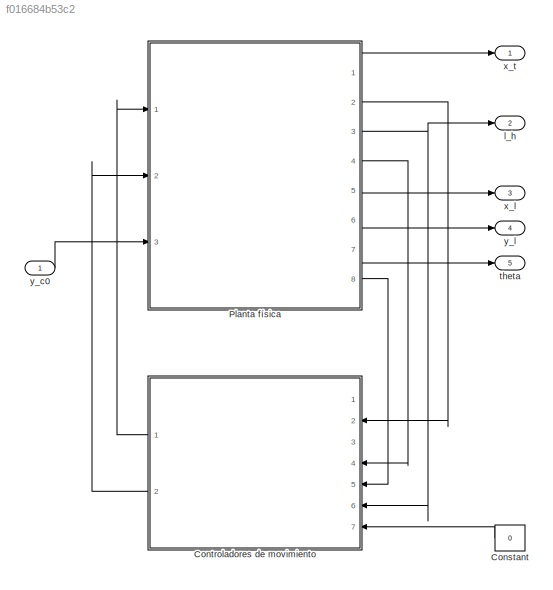
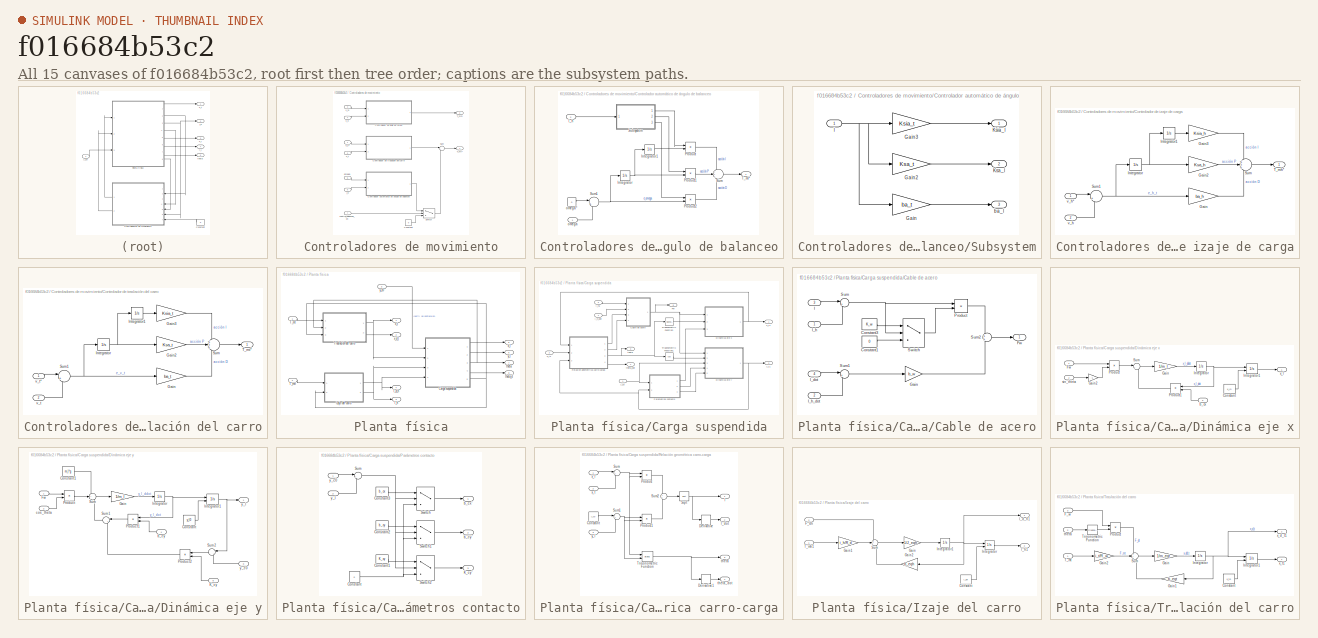
[diagram: thumbnail index - all 15 canvases of the model, root first then tree order]
MODEL slx_f016684b53c2
KIND model
CONFIG AbsTol = auto
CONFIG EnableMultiTasking = off
CONFIG FixedStep = auto
CONFIG MaxStep = auto
CONFIG MinStep = auto
CONFIG RelTol = 1e-3
CONFIG SampleTimeConstraint = Unconstrained
CONFIG Solver = VariableStepAuto
CONFIG SolverName = VariableStepAuto
CONFIG StartTime = 0.0
CONFIG StopTime = 60
BLOCK [Constant] Constant
  OutDataTypeStr = boolean
  Value = 0
BLOCK [SubSystem] Controladores de movimiento
  Ports = [7, 2]
  RequestExecContextInheritance = off
BLOCK [Constant] Controladores de movimiento/Constant
  Value = 0
BLOCK [SubSystem] Controladores de movimiento/Controlador automático de ángulo de balanceo
  Ports = [2, 1]
  RequestExecContextInheritance = off
BLOCK [Integrator] Controladores de movimiento/Controlador automático de ángulo de balanceo/Integrator
  Ports = [1, 1]
BLOCK [Integrator] Controladores de movimiento/Controlador automático de ángulo de balanceo/Integrator1
  Ports = [1, 1]
BLOCK [Product] Controladores de movimiento/Controlador automático de ángulo de balanceo/Product
  InputSameDT = off
  OutDataTypeStr = Inherit: Inherit via internal rule
  Ports = [2, 1]
  RndMeth = Floor
  SaturateOnIntegerOverflow = off
BLOCK [Product] Controladores de movimiento/Controlador automático de ángulo de balanceo/Product1
  InputSameDT = off
  OutDataTypeStr = Inherit: Inherit via internal rule
  Ports = [2, 1]
  RndMeth = Floor
  SaturateOnIntegerOverflow = off
BLOCK [Product] Controladores de movimiento/Controlador automático de ángulo de balanceo/Product2
  InputSameDT = off
  OutDataTypeStr = Inherit: Inherit via internal rule
  Ports = [2, 1]
  RndMeth = Floor
  SaturateOnIntegerOverflow = off
BLOCK [SubSystem] Controladores de movimiento/Controlador automático de ángulo de balanceo/Subsystem
  Ports = [1, 3]
  RequestExecContextInheritance = off
BLOCK [Gain] Controladores de movimiento/Controlador automático de ángulo de balanceo/Subsystem/Gain
  Gain = ba_t
  OutDataTypeStr = Inherit: Inherit via internal rule
  ParamDataTypeStr = Inherit: Inherit via internal rule
  SaturateOnIntegerOverflow = off
BLOCK [Gain] Controladores de movimiento/Controlador automático de ángulo de balanceo/Subsystem/Gain2
  Gain = Ksa_t
  OutDataTypeStr = Inherit: Inherit via internal rule
  ParamDataTypeStr = Inherit: Inherit via internal rule
  SaturateOnIntegerOverflow = off
BLOCK [Gain] Controladores de movimiento/Controlador automático de ángulo de balanceo/Subsystem/Gain3
  Gain = Ksia_t
  OutDataTypeStr = Inherit: Inherit via internal rule
  ParamDataTypeStr = Inherit: Inherit via internal rule
  SaturateOnIntegerOverflow = off
BLOCK [Outport] Controladores de movimiento/Controlador automático de ángulo de balanceo/Subsystem/Ksa_l
  IconDisplay = Port number
  Port = 2
BLOCK [Outport] Controladores de movimiento/Controlador automático de ángulo de balanceo/Subsystem/Ksia_l
  IconDisplay = Port number
BLOCK [Outport] Controladores de movimiento/Controlador automático de ángulo de balanceo/Subsystem/ba_l
  IconDisplay = Port number
  Port = 3
BLOCK [Inport] Controladores de movimiento/Controlador automático de ángulo de balanceo/Subsystem/l
  IconDisplay = Port number
BLOCK [Sum] Controladores de movimiento/Controlador automático de ángulo de balanceo/Sum
  IconShape = round
  InputSameDT = off
  Inputs = +++
  OutDataTypeStr = Inherit: Inherit via internal rule
  Ports = [3, 1]
  SaturateOnIntegerOverflow = off
BLOCK [Sum] Controladores de movimiento/Controlador automático de ángulo de balanceo/Sum1
  IconShape = round
  InputSameDT = off
  Inputs = |+-
  OutDataTypeStr = Inherit: Inherit via internal rule
  Ports = [2, 1]
  SaturateOnIntegerOverflow = off
BLOCK [Outport] Controladores de movimiento/Controlador automático de ángulo de balanceo/T_ml*
  IconDisplay = Port number
BLOCK [Inport] Controladores de movimiento/Controlador automático de ángulo de balanceo/l_h
  IconDisplay = Port number
  Port = 2
BLOCK [Inport] Controladores de movimiento/Controlador automático de ángulo de balanceo/omega
  IconDisplay = Port number
BLOCK [Constant] Controladores de movimiento/Controlador automático de ángulo de balanceo/omega*
  Value = 0
BLOCK [SubSystem] Controladores de movimiento/Controlador de izaje de carga
  Ports = [2, 1]
  RequestExecContextInheritance = off
BLOCK [Gain] Controladores de movimiento/Controlador de izaje de carga/Gain
  Gain = ba_h
  OutDataTypeStr = Inherit: Inherit via internal rule
  ParamDataTypeStr = Inherit: Inherit via internal rule
  SaturateOnIntegerOverflow = off
BLOCK [Gain] Controladores de movimiento/Controlador de izaje de carga/Gain2
  Gain = Ksa_h
  OutDataTypeStr = Inherit: Inherit via internal rule
  ParamDataTypeStr = Inherit: Inherit via internal rule
  SaturateOnIntegerOverflow = off
BLOCK [Gain] Controladores de movimiento/Controlador de izaje de carga/Gain3
  Gain = Ksia_h
  OutDataTypeStr = Inherit: Inherit via internal rule
  ParamDataTypeStr = Inherit: Inherit via internal rule
  SaturateOnIntegerOverflow = off
BLOCK [Integrator] Controladores de movimiento/Controlador de izaje de carga/Integrator
  Ports = [1, 1]
BLOCK [Integrator] Controladores de movimiento/Controlador de izaje de carga/Integrator1
  Ports = [1, 1]
BLOCK [Sum] Controladores de movimiento/Controlador de izaje de carga/Sum
  IconShape = round
  InputSameDT = off
  Inputs = +++
  OutDataTypeStr = Inherit: Inherit via internal rule
  Ports = [3, 1]
  SaturateOnIntegerOverflow = off
BLOCK [Sum] Controladores de movimiento/Controlador de izaje de carga/Sum1
  IconShape = round
  InputSameDT = off
  Inputs = |+-
  OutDataTypeStr = Inherit: Inherit via internal rule
  Ports = [2, 1]
  SaturateOnIntegerOverflow = off
BLOCK [Outport] Controladores de movimiento/Controlador de izaje de carga/T_mh*
  IconDisplay = Port number
BLOCK [Inport] Controladores de movimiento/Controlador de izaje de carga/v_h
  IconDisplay = Port number
  Port = 2
BLOCK [Inport] Controladores de movimiento/Controlador de izaje de carga/v_h*
  IconDisplay = Port number
BLOCK [SubSystem] Controladores de movimiento/Controlador de traslación del carro
  Ports = [2, 1]
  RequestExecContextInheritance = off
BLOCK [Gain] Controladores de movimiento/Controlador de traslación del carro/Gain
  Gain = ba_t
  OutDataTypeStr = Inherit: Inherit via internal rule
  ParamDataTypeStr = Inherit: Inherit via internal rule
  SaturateOnIntegerOverflow = off
BLOCK [Gain] Controladores de movimiento/Controlador de traslación del carro/Gain2
  Gain = Ksa_t
  OutDataTypeStr = Inherit: Inherit via internal rule
  ParamDataTypeStr = Inherit: Inherit via internal rule
  SaturateOnIntegerOverflow = off
BLOCK [Gain] Controladores de movimiento/Controlador de traslación del carro/Gain3
  Gain = Ksia_t
  OutDataTypeStr = Inherit: Inherit via internal rule
  ParamDataTypeStr = Inherit: Inherit via internal rule
  SaturateOnIntegerOverflow = off
BLOCK [Integrator] Controladores de movimiento/Controlador de traslación del carro/Integrator
  Ports = [1, 1]
BLOCK [Integrator] Controladores de movimiento/Controlador de traslación del carro/Integrator1
  Ports = [1, 1]
BLOCK [Sum] Controladores de movimiento/Controlador de traslación del carro/Sum
  IconShape = round
  InputSameDT = off
  Inputs = +++
  OutDataTypeStr = Inherit: Inherit via internal rule
  Ports = [3, 1]
  SaturateOnIntegerOverflow = off
BLOCK [Sum] Controladores de movimiento/Controlador de traslación del carro/Sum1
  IconShape = round
  InputSameDT = off
  Inputs = |+-
  OutDataTypeStr = Inherit: Inherit via internal rule
  Ports = [2, 1]
  SaturateOnIntegerOverflow = off
BLOCK [Outport] Controladores de movimiento/Controlador de traslación del carro/T_mt*
  IconDisplay = Port number
BLOCK [Inport] Controladores de movimiento/Controlador de traslación del carro/v_t
  IconDisplay = Port number
  Port = 2
BLOCK [Inport] Controladores de movimiento/Controlador de traslación del carro/v_t*
  IconDisplay = Port number
BLOCK [Sum] Controladores de movimiento/Sum
  IconShape = round
  InputSameDT = off
  Inputs = |++
  OutDataTypeStr = Inherit: Inherit via internal rule
  Ports = [2, 1]
  SaturateOnIntegerOverflow = off
BLOCK [Switch] Controladores de movimiento/Switch
  InputSameDT = off
  SaturateOnIntegerOverflow = off
BLOCK [Outport] Controladores de movimiento/T_mh*
  IconDisplay = Port number
  Port = 2
BLOCK [Outport] Controladores de movimiento/T_mt*
  IconDisplay = Port number
BLOCK [Inport] Controladores de movimiento/control_balanceo_on
  IconDisplay = Port number
  LockScale = on
  OutDataTypeStr = boolean
  Port = 7
BLOCK [Inport] Controladores de movimiento/l_h
  IconDisplay = Port number
  Port = 6
BLOCK [Inport] Controladores de movimiento/omega
  IconDisplay = Port number
  Port = 5
BLOCK [Inport] Controladores de movimiento/v_h
  IconDisplay = Port number
  Port = 4
BLOCK [Inport] Controladores de movimiento/v_h*
  IconDisplay = Port number
  Port = 3
BLOCK [Inport] Controladores de movimiento/v_t
  IconDisplay = Port number
  Port = 2
BLOCK [Inport] Controladores de movimiento/v_t*
  IconDisplay = Port number
BLOCK [SubSystem] Planta física
  Ports = [3, 8]
  RequestExecContextInheritance = off
BLOCK [SubSystem] Planta física/Carga suspendida
  Ports = [4, 5]
  RequestExecContextInheritance = off
BLOCK [SubSystem] Planta física/Carga suspendida/Cable de acero
  Ports = [4, 1]
  RequestExecContextInheritance = off
BLOCK [Constant] Planta física/Carga suspendida/Cable de acero/Constant1
  Value = 0
BLOCK [Constant] Planta física/Carga suspendida/Cable de acero/Constant3
  Value = K_w
BLOCK [Outport] Planta física/Carga suspendida/Cable de acero/Fw
  IconDisplay = Port number
BLOCK [Gain] Planta física/Carga suspendida/Cable de acero/Gain
  Gain = b_w
  OutDataTypeStr = Inherit: Inherit via internal rule
  ParamDataTypeStr = Inherit: Inherit via internal rule
  SaturateOnIntegerOverflow = off
BLOCK [Product] Planta física/Carga suspendida/Cable de acero/Product
  InputSameDT = off
  OutDataTypeStr = Inherit: Inherit via internal rule
  Ports = [2, 1]
  RndMeth = Floor
  SaturateOnIntegerOverflow = off
BLOCK [Sum] Planta física/Carga suspendida/Cable de acero/Sum
  IconShape = round
  InputSameDT = off
  Inputs = |+-
  OutDataTypeStr = Inherit: Inherit via internal rule
  Ports = [2, 1]
  SaturateOnIntegerOverflow = off
BLOCK [Sum] Planta física/Carga suspendida/Cable de acero/Sum1
  IconShape = round
  InputSameDT = off
  Inputs = |+-
  OutDataTypeStr = Inherit: Inherit via internal rule
  Ports = [2, 1]
  SaturateOnIntegerOverflow = off
BLOCK [Sum] Planta física/Carga suspendida/Cable de acero/Sum2
  IconShape = round
  InputSameDT = off
  Inputs = +|+
  OutDataTypeStr = Inherit: Inherit via internal rule
  Ports = [2, 1]
  SaturateOnIntegerOverflow = off
BLOCK [Switch] Planta física/Carga suspendida/Cable de acero/Switch
  InputSameDT = off
  SaturateOnIntegerOverflow = off
BLOCK [Inport] Planta física/Carga suspendida/Cable de acero/l
  IconDisplay = Port number
  OutDataTypeStr = double
  Port = 3
  PortDimensions = 1
  SampleTime = 0
  SamplingMode = Sample based
  SignalType = real
BLOCK [Inport] Planta física/Carga suspendida/Cable de acero/l_dot
  IconDisplay = Port number
  OutDataTypeStr = double
  Port = 4
  PortDimensions = 1
  SampleTime = 0
  SamplingMode = Sample based
  SignalType = real
BLOCK [Inport] Planta física/Carga suspendida/Cable de acero/l_h
  IconDisplay = Port number
  OutDataTypeStr = double
  PortDimensions = 1
  SampleTime = 0
  SamplingMode = Sample based
  SignalType = real
BLOCK [Inport] Planta física/Carga suspendida/Cable de acero/l_h_dot
  IconDisplay = Port number
  OutDataTypeStr = double
  Port = 2
  PortDimensions = 1
  SampleTime = 0
  SamplingMode = Sample based
  SignalType = real
BLOCK [SubSystem] Planta física/Carga suspendida/Dinámica eje x
  Ports = [3, 1]
  RequestExecContextInheritance = off
BLOCK [Constant] Planta física/Carga suspendida/Dinámica eje x/Constant
  Value = x_l0
BLOCK [Inport] Planta física/Carga suspendida/Dinámica eje x/Fw
  IconDisplay = Port number
  OutDataTypeStr = double
  PortDimensions = 1
  SampleTime = 0
  SamplingMode = Sample based
  SignalType = real
BLOCK [Gain] Planta física/Carga suspendida/Dinámica eje x/Gain
  Gain = 1/m_l
  OutDataTypeStr = Inherit: Inherit via internal rule
  ParamDataTypeStr = Inherit: Inherit via internal rule
  SaturateOnIntegerOverflow = off
BLOCK [Gain] Planta física/Carga suspendida/Dinámica eje x/Gain2
  Gain = -1
  OutDataTypeStr = Inherit: Inherit via internal rule
  ParamDataTypeStr = Inherit: Inherit via internal rule
  SaturateOnIntegerOverflow = off
BLOCK [Integrator] Planta física/Carga suspendida/Dinámica eje x/Integrator
  Ports = [1, 1]
BLOCK [Integrator] Planta física/Carga suspendida/Dinámica eje x/Integrator1
  InitialConditionSource = external
  Ports = [2, 1]
BLOCK [Product] Planta física/Carga suspendida/Dinámica eje x/Product
  InputSameDT = off
  OutDataTypeStr = Inherit: Inherit via internal rule
  Ports = [2, 1]
  RndMeth = Floor
  SaturateOnIntegerOverflow = off
BLOCK [Product] Planta física/Carga suspendida/Dinámica eje x/Product1
  InputSameDT = off
  OutDataTypeStr = Inherit: Inherit via internal rule
  Ports = [2, 1]
  RndMeth = Floor
  SaturateOnIntegerOverflow = off
BLOCK [Sum] Planta física/Carga suspendida/Dinámica eje x/Sum
  IconShape = round
  InputSameDT = off
  Inputs = |+-
  OutDataTypeStr = Inherit: Inherit via internal rule
  Ports = [2, 1]
  SaturateOnIntegerOverflow = off
BLOCK [Inport] Planta física/Carga suspendida/Dinámica eje x/b_cx
  IconDisplay = Port number
  OutDataTypeStr = double
  Port = 3
  PortDimensions = 1
  SampleTime = 0
  SamplingMode = Sample based
  SignalType = real
BLOCK [Inport] Planta física/Carga suspendida/Dinámica eje x/sin_theta
  IconDisplay = Port number
  OutDataTypeStr = double
  Port = 2
  PortDimensions = 1
  SampleTime = 0
  SamplingMode = Sample based
  SignalType = real
BLOCK [Outport] Planta física/Carga suspendida/Dinámica eje x/x_l
  IconDisplay = Port number
  OutDataTypeStr = double
  PortDimensions = 1
  SampleTime = 0
  SamplingMode = Sample based
  SignalType = real
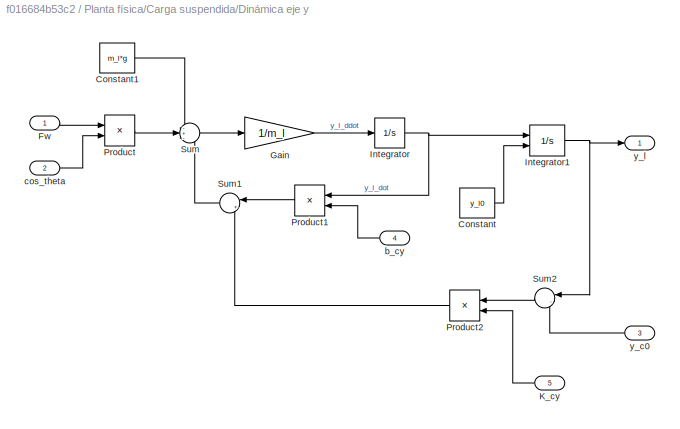
BLOCK [SubSystem] Planta física/Carga suspendida/Dinámica eje y
  Ports = [5, 1]
  RequestExecContextInheritance = off
BLOCK [Constant] Planta física/Carga suspendida/Dinámica eje y/Constant
  Value = y_l0
BLOCK [Constant] Planta física/Carga suspendida/Dinámica eje y/Constant1
  Value = m_l*g
BLOCK [Inport] Planta física/Carga suspendida/Dinámica eje y/Fw
  IconDisplay = Port number
  OutDataTypeStr = double
  PortDimensions = 1
  SampleTime = 0
  SamplingMode = Sample based
  SignalType = real
BLOCK [Gain] Planta física/Carga suspendida/Dinámica eje y/Gain
  Gain = 1/m_l
  OutDataTypeStr = Inherit: Inherit via internal rule
  ParamDataTypeStr = Inherit: Inherit via internal rule
  SaturateOnIntegerOverflow = off
BLOCK [Integrator] Planta física/Carga suspendida/Dinámica eje y/Integrator
  Ports = [1, 1]
BLOCK [Integrator] Planta física/Carga suspendida/Dinámica eje y/Integrator1
  InitialConditionSource = external
  Ports = [2, 1]
BLOCK [Inport] Planta física/Carga suspendida/Dinámica eje y/K_cy
  IconDisplay = Port number
  OutDataTypeStr = double
  Port = 5
  PortDimensions = 1
  SampleTime = 0
  SamplingMode = Sample based
  SignalType = real
BLOCK [Product] Planta física/Carga suspendida/Dinámica eje y/Product
  InputSameDT = off
  OutDataTypeStr = Inherit: Inherit via internal rule
  Ports = [2, 1]
  RndMeth = Floor
  SaturateOnIntegerOverflow = off
BLOCK [Product] Planta física/Carga suspendida/Dinámica eje y/Product1
  InputSameDT = off
  OutDataTypeStr = Inherit: Inherit via internal rule
  Ports = [2, 1]
  RndMeth = Floor
  SaturateOnIntegerOverflow = off
BLOCK [Product] Planta física/Carga suspendida/Dinámica eje y/Product2
  InputSameDT = off
  OutDataTypeStr = Inherit: Inherit via internal rule
  Ports = [2, 1]
  RndMeth = Floor
  SaturateOnIntegerOverflow = off
BLOCK [Sum] Planta física/Carga suspendida/Dinámica eje y/Sum
  IconShape = round
  InputSameDT = off
  Inputs = -+-
  OutDataTypeStr = Inherit: Inherit via internal rule
  Ports = [3, 1]
  SaturateOnIntegerOverflow = off
BLOCK [Sum] Planta física/Carga suspendida/Dinámica eje y/Sum1
  IconShape = round
  InputSameDT = off
  Inputs = |+-
  OutDataTypeStr = Inherit: Inherit via internal rule
  Ports = [2, 1]
  SaturateOnIntegerOverflow = off
BLOCK [Sum] Planta física/Carga suspendida/Dinámica eje y/Sum2
  IconShape = round
  InputSameDT = off
  Inputs = |-+
  OutDataTypeStr = Inherit: Inherit via internal rule
  Ports = [2, 1]
  SaturateOnIntegerOverflow = off
BLOCK [Inport] Planta física/Carga suspendida/Dinámica eje y/b_cy
  IconDisplay = Port number
  OutDataTypeStr = double
  Port = 4
  PortDimensions = 1
  SampleTime = 0
  SamplingMode = Sample based
  SignalType = real
BLOCK [Inport] Planta física/Carga suspendida/Dinámica eje y/cos_theta
  IconDisplay = Port number
  OutDataTypeStr = double
  Port = 2
  PortDimensions = 1
  SampleTime = 0
  SamplingMode = Sample based
  SignalType = real
BLOCK [Inport] Planta física/Carga suspendida/Dinámica eje y/y_c0
  IconDisplay = Port number
  OutDataTypeStr = double
  Port = 3
  PortDimensions = 1
  SampleTime = 0
  SamplingMode = Sample based
  SignalType = real
BLOCK [Outport] Planta física/Carga suspendida/Dinámica eje y/y_l
  IconDisplay = Port number
  OutDataTypeStr = double
  PortDimensions = 1
  SampleTime = 0
  SamplingMode = Sample based
  SignalType = real
BLOCK [Outport] Planta física/Carga suspendida/Fw
  IconDisplay = Port number
  OutDataTypeStr = double
  Port = 5
  PortDimensions = 1
  SampleTime = 0
  SamplingMode = Sample based
  SignalType = real
BLOCK [SubSystem] Planta física/Carga suspendida/Parámetros contacto
  Ports = [2, 3]
  RequestExecContextInheritance = off
BLOCK [Constant] Planta física/Carga suspendida/Parámetros contacto/Constant
  Value = 0
BLOCK [Constant] Planta física/Carga suspendida/Parámetros contacto/Constant1
  Value = K_cy
BLOCK [Constant] Planta física/Carga suspendida/Parámetros contacto/Constant2
  Value = b_cy
BLOCK [Constant] Planta física/Carga suspendida/Parámetros contacto/Constant3
  Value = b_cx
BLOCK [Outport] Planta física/Carga suspendida/Parámetros contacto/K_cy'
  IconDisplay = Port number
  OutDataTypeStr = double
  Port = 3
  PortDimensions = 1
  SampleTime = 0
  SamplingMode = Sample based
  SignalType = real
BLOCK [Sum] Planta física/Carga suspendida/Parámetros contacto/Sum
  IconShape = round
  InputSameDT = off
  Inputs = |+-
  OutDataTypeStr = Inherit: Inherit via internal rule
  Ports = [2, 1]
  SaturateOnIntegerOverflow = off
BLOCK [Switch] Planta física/Carga suspendida/Parámetros contacto/Switch
  InputSameDT = off
  SaturateOnIntegerOverflow = off
BLOCK [Switch] Planta física/Carga suspendida/Parámetros contacto/Switch1
  InputSameDT = off
  SaturateOnIntegerOverflow = off
BLOCK [Switch] Planta física/Carga suspendida/Parámetros contacto/Switch2
  InputSameDT = off
  SaturateOnIntegerOverflow = off
BLOCK [Outport] Planta física/Carga suspendida/Parámetros contacto/b_cx'
  IconDisplay = Port number
  OutDataTypeStr = double
  PortDimensions = 1
  SampleTime = 0
  SamplingMode = Sample based
  SignalType = real
BLOCK [Outport] Planta física/Carga suspendida/Parámetros contacto/b_cy'
  IconDisplay = Port number
  OutDataTypeStr = double
  Port = 2
  PortDimensions = 1
  SampleTime = 0
  SamplingMode = Sample based
  SignalType = real
BLOCK [Inport] Planta física/Carga suspendida/Parámetros contacto/y_c0
  IconDisplay = Port number
  OutDataTypeStr = double
  PortDimensions = 1
  SampleTime = 0
  SamplingMode = Sample based
  SignalType = real
BLOCK [Inport] Planta física/Carga suspendida/Parámetros contacto/y_l
  IconDisplay = Port number
  OutDataTypeStr = double
  Port = 2
  PortDimensions = 1
  SampleTime = 0
  SamplingMode = Sample based
  SignalType = real
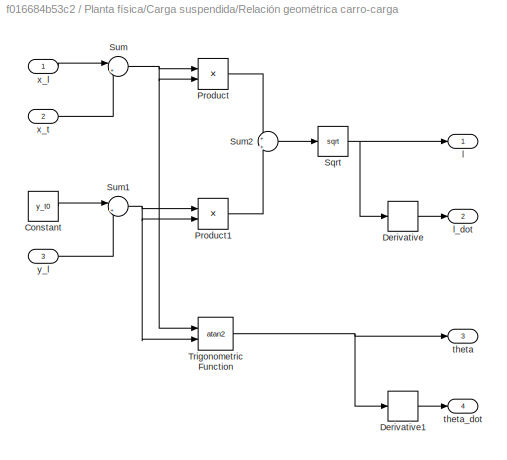
BLOCK [SubSystem] Planta física/Carga suspendida/Relación geométrica carro-carga
  Ports = [3, 4]
  RequestExecContextInheritance = off
BLOCK [Constant] Planta física/Carga suspendida/Relación geométrica carro-carga/Constant
  Value = y_t0
BLOCK [Derivative] Planta física/Carga suspendida/Relación geométrica carro-carga/Derivative
BLOCK [Derivative] Planta física/Carga suspendida/Relación geométrica carro-carga/Derivative1
BLOCK [Product] Planta física/Carga suspendida/Relación geométrica carro-carga/Product
  InputSameDT = off
  OutDataTypeStr = Inherit: Inherit via internal rule
  Ports = [2, 1]
  RndMeth = Floor
  SaturateOnIntegerOverflow = off
BLOCK [Product] Planta física/Carga suspendida/Relación geométrica carro-carga/Product1
  InputSameDT = off
  OutDataTypeStr = Inherit: Inherit via internal rule
  Ports = [2, 1]
  RndMeth = Floor
  SaturateOnIntegerOverflow = off
BLOCK [Sqrt] Planta física/Carga suspendida/Relación geométrica carro-carga/Sqrt
BLOCK [Sum] Planta física/Carga suspendida/Relación geométrica carro-carga/Sum
  IconShape = round
  InputSameDT = off
  Inputs = |+-
  OutDataTypeStr = Inherit: Inherit via internal rule
  Ports = [2, 1]
  SaturateOnIntegerOverflow = off
BLOCK [Sum] Planta física/Carga suspendida/Relación geométrica carro-carga/Sum1
  IconShape = round
  InputSameDT = off
  Inputs = |+-
  OutDataTypeStr = Inherit: Inherit via internal rule
  Ports = [2, 1]
  SaturateOnIntegerOverflow = off
BLOCK [Sum] Planta física/Carga suspendida/Relación geométrica carro-carga/Sum2
  IconShape = round
  InputSameDT = off
  Inputs = +|+
  OutDataTypeStr = Inherit: Inherit via internal rule
  Ports = [2, 1]
  SaturateOnIntegerOverflow = off
BLOCK [Trigonometry] Planta física/Carga suspendida/Relación geométrica carro-carga/Trigonometric Function
  Operator = atan2
  Ports = [2, 1]
BLOCK [Outport] Planta física/Carga suspendida/Relación geométrica carro-carga/l
  IconDisplay = Port number
BLOCK [Outport] Planta física/Carga suspendida/Relación geométrica carro-carga/l_dot
  IconDisplay = Port number
  Port = 2
BLOCK [Outport] Planta física/Carga suspendida/Relación geométrica carro-carga/theta
  IconDisplay = Port number
  Port = 3
BLOCK [Outport] Planta física/Carga suspendida/Relación geométrica carro-carga/theta_dot
  IconDisplay = Port number
  Port = 4
BLOCK [Inport] Planta física/Carga suspendida/Relación geométrica carro-carga/x_l
  IconDisplay = Port number
BLOCK [Inport] Planta física/Carga suspendida/Relación geométrica carro-carga/x_t
  IconDisplay = Port number
  Port = 2
BLOCK [Inport] Planta física/Carga suspendida/Relación geométrica carro-carga/y_l
  IconDisplay = Port number
  Port = 3
BLOCK [Trigonometry] Planta física/Carga suspendida/Trigonometric Function
  Ports = [1, 1]
BLOCK [Trigonometry] Planta física/Carga suspendida/Trigonometric Function1
  Operator = cos
  Ports = [1, 1]
BLOCK [Inport] Planta física/Carga suspendida/l_h1
  IconDisplay = Port number
  OutDataTypeStr = double
  Port = 3
  PortDimensions = 1
  SampleTime = 0
  SamplingMode = Sample based
  SignalType = real
BLOCK [Inport] Planta física/Carga suspendida/l_h_dot
  IconDisplay = Port number
  OutDataTypeStr = double
  Port = 4
  PortDimensions = 1
  SampleTime = 0
  SamplingMode = Sample based
  SignalType = real
BLOCK [Outport] Planta física/Carga suspendida/theta
  IconDisplay = Port number
  OutDataTypeStr = double
  Port = 3
  PortDimensions = 1
  SampleTime = 0
  SamplingMode = Sample based
  SignalType = real
BLOCK [Outport] Planta física/Carga suspendida/theta_dot
  IconDisplay = Port number
  OutDataTypeStr = double
  Port = 4
  PortDimensions = 1
  SampleTime = 0
  SamplingMode = Sample based
  SignalType = real
BLOCK [Outport] Planta física/Carga suspendida/x_l1
  IconDisplay = Port number
  OutDataTypeStr = double
  PortDimensions = 1
  SampleTime = 0
  SamplingMode = Sample based
  SignalType = real
BLOCK [Inport] Planta física/Carga suspendida/x_t1
  IconDisplay = Port number
  OutDataTypeStr = double
  Port = 2
  PortDimensions = 1
  SampleTime = 0
  SamplingMode = Sample based
  SignalType = real
BLOCK [Inport] Planta física/Carga suspendida/y_c0
  IconDisplay = Port number
  OutDataTypeStr = double
  PortDimensions = 1
  SampleTime = 0
  SamplingMode = Sample based
  SignalType = real
BLOCK [Outport] Planta física/Carga suspendida/y_l1
  IconDisplay = Port number
  OutDataTypeStr = double
  Port = 2
  PortDimensions = 1
  SampleTime = 0
  SamplingMode = Sample based
  SignalType = real
BLOCK [SubSystem] Planta física/Izaje del carro
  Ports = [2, 2]
  RequestExecContextInheritance = off
BLOCK [Constant] Planta física/Izaje del carro/Constant
  Value = l_0h
BLOCK [Inport] Planta física/Izaje del carro/F_dh
  IconDisplay = Port number
  Port = 2
BLOCK [Gain] Planta física/Izaje del carro/Gain
  Gain = 1/J_eqh
  OutDataTypeStr = Inherit: Inherit via internal rule
  ParamDataTypeStr = Inherit: Inherit via internal rule
  SaturateOnIntegerOverflow = off
BLOCK [Gain] Planta física/Izaje del carro/Gain1
  Gain = i_h/R_d
  OutDataTypeStr = Inherit: Inherit via internal rule
  ParamDataTypeStr = Inherit: Inherit via internal rule
  SaturateOnIntegerOverflow = off
BLOCK [Gain] Planta física/Izaje del carro/Gain2
  Gain = b_eqh
  OutDataTypeStr = Inherit: Inherit via internal rule
  ParamDataTypeStr = Inherit: Inherit via internal rule
  SaturateOnIntegerOverflow = off
BLOCK [Integrator] Planta física/Izaje del carro/Integrator
  InitialConditionSource = external
  Ports = [2, 1]
BLOCK [Integrator] Planta física/Izaje del carro/Integrator1
  Ports = [1, 1]
BLOCK [Sum] Planta física/Izaje del carro/Sum
  IconShape = round
  InputSameDT = off
  Inputs = ++-
  OutDataTypeStr = Inherit: Inherit via internal rule
  Ports = [3, 1]
  SaturateOnIntegerOverflow = off
BLOCK [Inport] Planta física/Izaje del carro/T_mh1
  IconDisplay = Port number
BLOCK [Outport] Planta física/Izaje del carro/l_d_h1
  IconDisplay = Port number
BLOCK [Outport] Planta física/Izaje del carro/l_h1
  IconDisplay = Port number
  Port = 2
BLOCK [Inport] Planta física/T_mh
  IconDisplay = Port number
  Port = 2
BLOCK [Inport] Planta física/T_mt
  IconDisplay = Port number
BLOCK [SubSystem] Planta física/Traslación del carro
  Ports = [3, 2]
  RequestExecContextInheritance = off
BLOCK [Constant] Planta física/Traslación del carro/Constant
  Value = x_t0
BLOCK [Inport] Planta física/Traslación del carro/F_w
  IconDisplay = Port number
  OutDataTypeStr = double
  Port = 3
  PortDimensions = 1
  SampleTime = 0
  SamplingMode = Sample based
  SignalType = real
BLOCK [Gain] Planta física/Traslación del carro/Gain
  Gain = 1/m_eqt
  OutDataTypeStr = Inherit: Inherit via internal rule
  ParamDataTypeStr = Inherit: Inherit via internal rule
  SaturateOnIntegerOverflow = off
BLOCK [Gain] Planta física/Traslación del carro/Gain1
  Gain = b_eqt
  OutDataTypeStr = Inherit: Inherit via internal rule
  ParamDataTypeStr = Inherit: Inherit via internal rule
  SaturateOnIntegerOverflow = off
BLOCK [Gain] Planta física/Traslación del carro/Gain2
  Gain = i_t/R_w
  OutDataTypeStr = Inherit: Inherit via internal rule
  ParamDataTypeStr = Inherit: Inherit via internal rule
  SaturateOnIntegerOverflow = off
BLOCK [Integrator] Planta física/Traslación del carro/Integrator
  Ports = [1, 1]
BLOCK [Integrator] Planta física/Traslación del carro/Integrator1
  InitialConditionSource = external
  Ports = [2, 1]
BLOCK [Product] Planta física/Traslación del carro/Product
  InputSameDT = off
  OutDataTypeStr = Inherit: Inherit via internal rule
  Ports = [2, 1]
  RndMeth = Floor
  SaturateOnIntegerOverflow = off
BLOCK [Sum] Planta física/Traslación del carro/Sum
  IconShape = round
  InputSameDT = off
  Inputs = ++-
  OutDataTypeStr = Inherit: Inherit via internal rule
  Ports = [3, 1]
  SaturateOnIntegerOverflow = off
BLOCK [Inport] Planta física/Traslación del carro/T_mt
  IconDisplay = Port number
  OutDataTypeStr = double
  PortDimensions = 1
  SampleTime = 0
  SamplingMode = Sample based
  SignalType = real
BLOCK [Trigonometry] Planta física/Traslación del carro/Trigonometric Function
  Ports = [1, 1]
BLOCK [Inport] Planta física/Traslación del carro/theta
  IconDisplay = Port number
  OutDataTypeStr = double
  Port = 2
  PortDimensions = 1
  SampleTime = 0
  SamplingMode = Sample based
  SignalType = real
BLOCK [Outport] Planta física/Traslación del carro/x_d_t1
  IconDisplay = Port number
  OutDataTypeStr = double
  Port = 2
  PortDimensions = 1
  SampleTime = 0
  SamplingMode = Sample based
  SignalType = real
BLOCK [Outport] Planta física/Traslación del carro/x_t1
  IconDisplay = Port number
  OutDataTypeStr = double
  PortDimensions = 1
  SampleTime = 0
  SamplingMode = Sample based
  SignalType = real
BLOCK [Outport] Planta física/l_d_h
  IconDisplay = Port number
  Port = 4
BLOCK [Outport] Planta física/l_h
  IconDisplay = Port number
  Port = 3
BLOCK [Outport] Planta física/theta
  IconDisplay = Port number
  Port = 7
BLOCK [Outport] Planta física/theta_d
  IconDisplay = Port number
  Port = 8
BLOCK [Outport] Planta física/x_d_t
  IconDisplay = Port number
  Port = 2
BLOCK [Outport] Planta física/x_l
  IconDisplay = Port number
  Port = 5
BLOCK [Outport] Planta física/x_t
  IconDisplay = Port number
BLOCK [Inport] Planta física/y_c0
  IconDisplay = Port number
  Port = 3
BLOCK [Outport] Planta física/y_l
  IconDisplay = Port number
  Port = 6
BLOCK [Outport] l_h
  IconDisplay = Port number
  Port = 2
BLOCK [Outport] theta
  IconDisplay = Port number
  Port = 5
BLOCK [Outport] x_l
  IconDisplay = Port number
  Port = 3
BLOCK [Outport] x_t
  IconDisplay = Port number
BLOCK [Inport] y_c0
  IconDisplay = Port number
BLOCK [Outport] y_l
  IconDisplay = Port number
  Port = 4
LINE Constant:1 -> Controladores de movimiento:7
LINE Controladores de movimiento/Constant:1 -> Controladores de movimiento/Switch:3
LINE Controladores de movimiento/Controlador automático de ángulo de balanceo/Integrator1:1 -> Controladores de movimiento/Controlador automático de ángulo de balanceo/Product:2
NET Controladores de movimiento/Controlador automático de ángulo de balanceo/Integrator:1 -> Controladores de movimiento/Controlador automático de ángulo de balanceo/Integrator1:1, Controladores de movimiento/Controlador automático de ángulo de balanceo/Product1:2
LINE Controladores de movimiento/Controlador automático de ángulo de balanceo/Product1:1 -> Controladores de movimiento/Controlador automático de ángulo de balanceo/Sum:2
LINE Controladores de movimiento/Controlador automático de ángulo de balanceo/Product2:1 -> Controladores de movimiento/Controlador automático de ángulo de balanceo/Sum:3
LINE Controladores de movimiento/Controlador automático de ángulo de balanceo/Product:1 -> Controladores de movimiento/Controlador automático de ángulo de balanceo/Sum:1
LINE Controladores de movimiento/Controlador automático de ángulo de balanceo/Subsystem/Gain2:1 -> Controladores de movimiento/Controlador automático de ángulo de balanceo/Subsystem/Ksa_l:1
LINE Controladores de movimiento/Controlador automático de ángulo de balanceo/Subsystem/Gain3:1 -> Controladores de movimiento/Controlador automático de ángulo de balanceo/Subsystem/Ksia_l:1
LINE Controladores de movimiento/Controlador automático de ángulo de balanceo/Subsystem/Gain:1 -> Controladores de movimiento/Controlador automático de ángulo de balanceo/Subsystem/ba_l:1
NET Controladores de movimiento/Controlador automático de ángulo de balanceo/Subsystem/l:1 -> Controladores de movimiento/Controlador automático de ángulo de balanceo/Subsystem/Gain2:1, Controladores de movimiento/Controlador automático de ángulo de balanceo/Subsystem/Gain3:1, Controladores de movimiento/Controlador automático de ángulo de balanceo/Subsystem/Gain:1
LINE Controladores de movimiento/Controlador automático de ángulo de balanceo/Subsystem:1 -> Controladores de movimiento/Controlador automático de ángulo de balanceo/Product:1
LINE Controladores de movimiento/Controlador automático de ángulo de balanceo/Subsystem:2 -> Controladores de movimiento/Controlador automático de ángulo de balanceo/Product1:1
LINE Controladores de movimiento/Controlador automático de ángulo de balanceo/Subsystem:3 -> Controladores de movimiento/Controlador automático de ángulo de balanceo/Product2:1
NET Controladores de movimiento/Controlador automático de ángulo de balanceo/Sum1:1 -> Controladores de movimiento/Controlador automático de ángulo de balanceo/Integrator:1, Controladores de movimiento/Controlador automático de ángulo de balanceo/Product2:2
LINE Controladores de movimiento/Controlador automático de ángulo de balanceo/Sum:1 -> Controladores de movimiento/Controlador automático de ángulo de balanceo/T_ml*:1
LINE Controladores de movimiento/Controlador automático de ángulo de balanceo/l_h:1 -> Controladores de movimiento/Controlador automático de ángulo de balanceo/Subsystem:1
LINE Controladores de movimiento/Controlador automático de ángulo de balanceo/omega*:1 -> Controladores de movimiento/Controlador automático de ángulo de balanceo/Sum1:1
LINE Controladores de movimiento/Controlador automático de ángulo de balanceo/omega:1 -> Controladores de movimiento/Controlador automático de ángulo de balanceo/Sum1:2
LINE Controladores de movimiento/Controlador automático de ángulo de balanceo:1 -> Controladores de movimiento/Switch:1
LINE Controladores de movimiento/Controlador de izaje de carga/Gain2:1 -> Controladores de movimiento/Controlador de izaje de carga/Sum:2
LINE Controladores de movimiento/Controlador de izaje de carga/Gain3:1 -> Controladores de movimiento/Controlador de izaje de carga/Sum:1
LINE Controladores de movimiento/Controlador de izaje de carga/Gain:1 -> Controladores de movimiento/Controlador de izaje de carga/Sum:3
LINE Controladores de movimiento/Controlador de izaje de carga/Integrator1:1 -> Controladores de movimiento/Controlador de izaje de carga/Gain3:1
NET Controladores de movimiento/Controlador de izaje de carga/Integrator:1 -> Controladores de movimiento/Controlador de izaje de carga/Gain2:1, Controladores de movimiento/Controlador de izaje de carga/Integrator1:1
NET Controladores de movimiento/Controlador de izaje de carga/Sum1:1 -> Controladores de movimiento/Controlador de izaje de carga/Gain:1, Controladores de movimiento/Controlador de izaje de carga/Integrator:1
LINE Controladores de movimiento/Controlador de izaje de carga/Sum:1 -> Controladores de movimiento/Controlador de izaje de carga/T_mh*:1
LINE Controladores de movimiento/Controlador de izaje de carga/v_h*:1 -> Controladores de movimiento/Controlador de izaje de carga/Sum1:1
LINE Controladores de movimiento/Controlador de izaje de carga/v_h:1 -> Controladores de movimiento/Controlador de izaje de carga/Sum1:2
LINE Controladores de movimiento/Controlador de izaje de carga:1 -> Controladores de movimiento/T_mh*:1
LINE Controladores de movimiento/Controlador de traslación del carro/Gain2:1 -> Controladores de movimiento/Controlador de traslación del carro/Sum:2
LINE Controladores de movimiento/Controlador de traslación del carro/Gain3:1 -> Controladores de movimiento/Controlador de traslación del carro/Sum:1
LINE Controladores de movimiento/Controlador de traslación del carro/Gain:1 -> Controladores de movimiento/Controlador de traslación del carro/Sum:3
LINE Controladores de movimiento/Controlador de traslación del carro/Integrator1:1 -> Controladores de movimiento/Controlador de traslación del carro/Gain3:1
NET Controladores de movimiento/Controlador de traslación del carro/Integrator:1 -> Controladores de movimiento/Controlador de traslación del carro/Gain2:1, Controladores de movimiento/Controlador de traslación del carro/Integrator1:1
NET Controladores de movimiento/Controlador de traslación del carro/Sum1:1 -> Controladores de movimiento/Controlador de traslación del carro/Gain:1, Controladores de movimiento/Controlador de traslación del carro/Integrator:1
LINE Controladores de movimiento/Controlador de traslación del carro/Sum:1 -> Controladores de movimiento/Controlador de traslación del carro/T_mt*:1
LINE Controladores de movimiento/Controlador de traslación del carro/v_t*:1 -> Controladores de movimiento/Controlador de traslación del carro/Sum1:1
LINE Controladores de movimiento/Controlador de traslación del carro/v_t:1 -> Controladores de movimiento/Controlador de traslación del carro/Sum1:2
LINE Controladores de movimiento/Controlador de traslación del carro:1 -> Controladores de movimiento/Sum:1
LINE Controladores de movimiento/Sum:1 -> Controladores de movimiento/T_mt*:1
LINE Controladores de movimiento/Switch:1 -> Controladores de movimiento/Sum:2
LINE Controladores de movimiento/control_balanceo_on:1 -> Controladores de movimiento/Switch:2
LINE Controladores de movimiento/l_h:1 -> Controladores de movimiento/Controlador automático de ángulo de balanceo:2
LINE Controladores de movimiento/omega:1 -> Controladores de movimiento/Controlador automático de ángulo de balanceo:1
LINE Controladores de movimiento/v_h*:1 -> Controladores de movimiento/Controlador de izaje de carga:1
LINE Controladores de movimiento/v_h:1 -> Controladores de movimiento/Controlador de izaje de carga:2
LINE Controladores de movimiento/v_t*:1 -> Controladores de movimiento/Controlador de traslación del carro:1
LINE Controladores de movimiento/v_t:1 -> Controladores de movimiento/Controlador de traslación del carro:2
LINE Controladores de movimiento:1 -> Planta física:1
LINE Controladores de movimiento:2 -> Planta física:2
LINE Planta física/Carga suspendida/Cable de acero/Constant1:1 -> Planta física/Carga suspendida/Cable de acero/Switch:3
LINE Planta física/Carga suspendida/Cable de acero/Constant3:1 -> Planta física/Carga suspendida/Cable de acero/Switch:1
LINE Planta física/Carga suspendida/Cable de acero/Gain:1 -> Planta física/Carga suspendida/Cable de acero/Sum2:2
LINE Planta física/Carga suspendida/Cable de acero/Product:1 -> Planta física/Carga suspendida/Cable de acero/Sum2:1
LINE Planta física/Carga suspendida/Cable de acero/Sum1:1 -> Planta física/Carga suspendida/Cable de acero/Gain:1
LINE Planta física/Carga suspendida/Cable de acero/Sum2:1 -> Planta física/Carga suspendida/Cable de acero/Fw:1
NET Planta física/Carga suspendida/Cable de acero/Sum:1 -> Planta física/Carga suspendida/Cable de acero/Product:1, Planta física/Carga suspendida/Cable de acero/Switch:2
LINE Planta física/Carga suspendida/Cable de acero/Switch:1 -> Planta física/Carga suspendida/Cable de acero/Product:2
LINE Planta física/Carga suspendida/Cable de acero/l:1 -> Planta física/Carga suspendida/Cable de acero/Sum:1
LINE Planta física/Carga suspendida/Cable de acero/l_dot:1 -> Planta física/Carga suspendida/Cable de acero/Sum1:1
LINE Planta física/Carga suspendida/Cable de acero/l_h:1 -> Planta física/Carga suspendida/Cable de acero/Sum:2
LINE Planta física/Carga suspendida/Cable de acero/l_h_dot:1 -> Planta física/Carga suspendida/Cable de acero/Sum1:2
NET Planta física/Carga suspendida/Cable de acero:1 -> Planta física/Carga suspendida/Dinámica eje x:1, Planta física/Carga suspendida/Dinámica eje y:1, Planta física/Carga suspendida/Fw:1
LINE Planta física/Carga suspendida/Dinámica eje x/Constant:1 -> Planta física/Carga suspendida/Dinámica eje x/Integrator1:2
LINE Planta física/Carga suspendida/Dinámica eje x/Fw:1 -> Planta física/Carga suspendida/Dinámica eje x/Product:1
LINE Planta física/Carga suspendida/Dinámica eje x/Gain2:1 -> Planta física/Carga suspendida/Dinámica eje x/Product:2
LINE Planta física/Carga suspendida/Dinámica eje x/Gain:1 -> Planta física/Carga suspendida/Dinámica eje x/Integrator:1
LINE Planta física/Carga suspendida/Dinámica eje x/Integrator1:1 -> Planta física/Carga suspendida/Dinámica eje x/x_l:1
NET Planta física/Carga suspendida/Dinámica eje x/Integrator:1 -> Planta física/Carga suspendida/Dinámica eje x/Integrator1:1, Planta física/Carga suspendida/Dinámica eje x/Product1:1
LINE Planta física/Carga suspendida/Dinámica eje x/Product1:1 -> Planta física/Carga suspendida/Dinámica eje x/Sum:2
LINE Planta física/Carga suspendida/Dinámica eje x/Product:1 -> Planta física/Carga suspendida/Dinámica eje x/Sum:1
LINE Planta física/Carga suspendida/Dinámica eje x/Sum:1 -> Planta física/Carga suspendida/Dinámica eje x/Gain:1
LINE Planta física/Carga suspendida/Dinámica eje x/b_cx:1 -> Planta física/Carga suspendida/Dinámica eje x/Product1:2
LINE Planta física/Carga suspendida/Dinámica eje x/sin_theta:1 -> Planta física/Carga suspendida/Dinámica eje x/Gain2:1
NET Planta física/Carga suspendida/Dinámica eje x:1 -> Planta física/Carga suspendida/Relación geométrica carro-carga:1, Planta física/Carga suspendida/x_l1:1
LINE Planta física/Carga suspendida/Dinámica eje y/Constant1:1 -> Planta física/Carga suspendida/Dinámica eje y/Sum:1
LINE Planta física/Carga suspendida/Dinámica eje y/Constant:1 -> Planta física/Carga suspendida/Dinámica eje y/Integrator1:2
LINE Planta física/Carga suspendida/Dinámica eje y/Fw:1 -> Planta física/Carga suspendida/Dinámica eje y/Product:1
LINE Planta física/Carga suspendida/Dinámica eje y/Gain:1 -> Planta física/Carga suspendida/Dinámica eje y/Integrator:1
NET Planta física/Carga suspendida/Dinámica eje y/Integrator1:1 -> Planta física/Carga suspendida/Dinámica eje y/Sum2:1, Planta física/Carga suspendida/Dinámica eje y/y_l:1
NET Planta física/Carga suspendida/Dinámica eje y/Integrator:1 -> Planta física/Carga suspendida/Dinámica eje y/Integrator1:1, Planta física/Carga suspendida/Dinámica eje y/Product1:1
LINE Planta física/Carga suspendida/Dinámica eje y/K_cy:1 -> Planta física/Carga suspendida/Dinámica eje y/Product2:2
LINE Planta física/Carga suspendida/Dinámica eje y/Product1:1 -> Planta física/Carga suspendida/Dinámica eje y/Sum1:1
LINE Planta física/Carga suspendida/Dinámica eje y/Product2:1 -> Planta física/Carga suspendida/Dinámica eje y/Sum1:2
LINE Planta física/Carga suspendida/Dinámica eje y/Product:1 -> Planta física/Carga suspendida/Dinámica eje y/Sum:2
LINE Planta física/Carga suspendida/Dinámica eje y/Sum1:1 -> Planta física/Carga suspendida/Dinámica eje y/Sum:3
LINE Planta física/Carga suspendida/Dinámica eje y/Sum2:1 -> Planta física/Carga suspendida/Dinámica eje y/Product2:1
LINE Planta física/Carga suspendida/Dinámica eje y/Sum:1 -> Planta física/Carga suspendida/Dinámica eje y/Gain:1
LINE Planta física/Carga suspendida/Dinámica eje y/b_cy:1 -> Planta física/Carga suspendida/Dinámica eje y/Product1:2
LINE Planta física/Carga suspendida/Dinámica eje y/cos_theta:1 -> Planta física/Carga suspendida/Dinámica eje y/Product:2
LINE Planta física/Carga suspendida/Dinámica eje y/y_c0:1 -> Planta física/Carga suspendida/Dinámica eje y/Sum2:2
NET Planta física/Carga suspendida/Dinámica eje y:1 -> Planta física/Carga suspendida/Parámetros contacto:2, Planta física/Carga suspendida/Relación geométrica carro-carga:3, Planta física/Carga suspendida/y_l1:1
LINE Planta física/Carga suspendida/Parámetros contacto/Constant1:1 -> Planta física/Carga suspendida/Parámetros contacto/Switch2:1
LINE Planta física/Carga suspendida/Parámetros contacto/Constant2:1 -> Planta física/Carga suspendida/Parámetros contacto/Switch1:1
LINE Planta física/Carga suspendida/Parámetros contacto/Constant3:1 -> Planta física/Carga suspendida/Parámetros contacto/Switch:1
NET Planta física/Carga suspendida/Parámetros contacto/Constant:1 -> Planta física/Carga suspendida/Parámetros contacto/Switch1:3, Planta física/Carga suspendida/Parámetros contacto/Switch2:3, Planta física/Carga suspendida/Parámetros contacto/Switch:3
NET Planta física/Carga suspendida/Parámetros contacto/Sum:1 -> Planta física/Carga suspendida/Parámetros contacto/Switch1:2, Planta física/Carga suspendida/Parámetros contacto/Switch2:2, Planta física/Carga suspendida/Parámetros contacto/Switch:2
LINE Planta física/Carga suspendida/Parámetros contacto/Switch1:1 -> Planta física/Carga suspendida/Parámetros contacto/b_cy':1
LINE Planta física/Carga suspendida/Parámetros contacto/Switch2:1 -> Planta física/Carga suspendida/Parámetros contacto/K_cy':1
LINE Planta física/Carga suspendida/Parámetros contacto/Switch:1 -> Planta física/Carga suspendida/Parámetros contacto/b_cx':1
LINE Planta física/Carga suspendida/Parámetros contacto/y_c0:1 -> Planta física/Carga suspendida/Parámetros contacto/Sum:1
LINE Planta física/Carga suspendida/Parámetros contacto/y_l:1 -> Planta física/Carga suspendida/Parámetros contacto/Sum:2
LINE Planta física/Carga suspendida/Parámetros contacto:1 -> Planta física/Carga suspendida/Dinámica eje x:3
LINE Planta física/Carga suspendida/Parámetros contacto:2 -> Planta física/Carga suspendida/Dinámica eje y:4
LINE Planta física/Carga suspendida/Parámetros contacto:3 -> Planta física/Carga suspendida/Dinámica eje y:5
LINE Planta física/Carga suspendida/Relación geométrica carro-carga/Constant:1 -> Planta física/Carga suspendida/Relación geométrica carro-carga/Sum1:1
LINE Planta física/Carga suspendida/Relación geométrica carro-carga/Derivative1:1 -> Planta física/Carga suspendida/Relación geométrica carro-carga/theta_dot:1
LINE Planta física/Carga suspendida/Relación geométrica carro-carga/Derivative:1 -> Planta física/Carga suspendida/Relación geométrica carro-carga/l_dot:1
LINE Planta física/Carga suspendida/Relación geométrica carro-carga/Product1:1 -> Planta física/Carga suspendida/Relación geométrica carro-carga/Sum2:2
LINE Planta física/Carga suspendida/Relación geométrica carro-carga/Product:1 -> Planta física/Carga suspendida/Relación geométrica carro-carga/Sum2:1
NET Planta física/Carga suspendida/Relación geométrica carro-carga/Sqrt:1 -> Planta física/Carga suspendida/Relación geométrica carro-carga/Derivative:1, Planta física/Carga suspendida/Relación geométrica carro-carga/l:1
NET Planta física/Carga suspendida/Relación geométrica carro-carga/Sum1:1 -> Planta física/Carga suspendida/Relación geométrica carro-carga/Product1:1, Planta física/Carga suspendida/Relación geométrica carro-carga/Product1:2, Planta física/Carga suspendida/Relación geométrica carro-carga/Trigonometric Function:2
LINE Planta física/Carga suspendida/Relación geométrica carro-carga/Sum2:1 -> Planta física/Carga suspendida/Relación geométrica carro-carga/Sqrt:1
NET Planta física/Carga suspendida/Relación geométrica carro-carga/Sum:1 -> Planta física/Carga suspendida/Relación geométrica carro-carga/Product:1, Planta física/Carga suspendida/Relación geométrica carro-carga/Product:2, Planta física/Carga suspendida/Relación geométrica carro-carga/Trigonometric Function:1
NET Planta física/Carga suspendida/Relación geométrica carro-carga/Trigonometric Function:1 -> Planta física/Carga suspendida/Relación geométrica carro-carga/Derivative1:1, Planta física/Carga suspendida/Relación geométrica carro-carga/theta:1
LINE Planta física/Carga suspendida/Relación geométrica carro-carga/x_l:1 -> Planta física/Carga suspendida/Relación geométrica carro-carga/Sum:1
LINE Planta física/Carga suspendida/Relación geométrica carro-carga/x_t:1 -> Planta física/Carga suspendida/Relación geométrica carro-carga/Sum:2
LINE Planta física/Carga suspendida/Relación geométrica carro-carga/y_l:1 -> Planta física/Carga suspendida/Relación geométrica carro-carga/Sum1:2
LINE Planta física/Carga suspendida/Relación geométrica carro-carga:1 -> Planta física/Carga suspendida/Cable de acero:3
LINE Planta física/Carga suspendida/Relación geométrica carro-carga:2 -> Planta física/Carga suspendida/Cable de acero:4
NET Planta física/Carga suspendida/Relación geométrica carro-carga:3 -> Planta física/Carga suspendida/Trigonometric Function1:1, Planta física/Carga suspendida/Trigonometric Function:1, Planta física/Carga suspendida/theta:1
LINE Planta física/Carga suspendida/Relación geométrica carro-carga:4 -> Planta física/Carga suspendida/theta_dot:1
LINE Planta física/Carga suspendida/Trigonometric Function1:1 -> Planta física/Carga suspendida/Dinámica eje y:2
LINE Planta física/Carga suspendida/Trigonometric Function:1 -> Planta física/Carga suspendida/Dinámica eje x:2
LINE Planta física/Carga suspendida/l_h1:1 -> Planta física/Carga suspendida/Cable de acero:1
LINE Planta física/Carga suspendida/l_h_dot:1 -> Planta física/Carga suspendida/Cable de acero:2
LINE Planta física/Carga suspendida/x_t1:1 -> Planta física/Carga suspendida/Relación geométrica carro-carga:2
NET Planta física/Carga suspendida/y_c0:1 -> Planta física/Carga suspendida/Dinámica eje y:3, Planta física/Carga suspendida/Parámetros contacto:1
LINE Planta física/Carga suspendida:1 -> Planta física/x_l:1
LINE Planta física/Carga suspendida:2 -> Planta física/y_l:1
NET Planta física/Carga suspendida:3 -> Planta física/Traslación del carro:2, Planta física/theta:1
LINE Planta física/Carga suspendida:4 -> Planta física/theta_d:1
NET Planta física/Carga suspendida:5 -> Planta física/Izaje del carro:2, Planta física/Traslación del carro:3
LINE Planta física/Izaje del carro/Constant:1 -> Planta física/Izaje del carro/Integrator:2
LINE Planta física/Izaje del carro/F_dh:1 -> Planta física/Izaje del carro/Sum:1
LINE Planta física/Izaje del carro/Gain1:1 -> Planta física/Izaje del carro/Sum:2
LINE Planta física/Izaje del carro/Gain2:1 -> Planta física/Izaje del carro/Sum:3
LINE Planta física/Izaje del carro/Gain:1 -> Planta física/Izaje del carro/Integrator1:1
NET Planta física/Izaje del carro/Integrator1:1 -> Planta física/Izaje del carro/Gain2:1, Planta física/Izaje del carro/Integrator:1, Planta física/Izaje del carro/l_d_h1:1
LINE Planta física/Izaje del carro/Integrator:1 -> Planta física/Izaje del carro/l_h1:1
LINE Planta física/Izaje del carro/Sum:1 -> Planta física/Izaje del carro/Gain:1
LINE Planta física/Izaje del carro/T_mh1:1 -> Planta física/Izaje del carro/Gain1:1
NET Planta física/Izaje del carro:1 -> Planta física/Carga suspendida:4, Planta física/l_d_h:1
NET Planta física/Izaje del carro:2 -> Planta física/Carga suspendida:3, Planta física/l_h:1
LINE Planta física/T_mh:1 -> Planta física/Izaje del carro:1
LINE Planta física/T_mt:1 -> Planta física/Traslación del carro:1
LINE Planta física/Traslación del carro/Constant:1 -> Planta física/Traslación del carro/Integrator1:2
LINE Planta física/Traslación del carro/F_w:1 -> Planta física/Traslación del carro/Product:1
LINE Planta física/Traslación del carro/Gain1:1 -> Planta física/Traslación del carro/Sum:3
LINE Planta física/Traslación del carro/Gain2:1 -> Planta física/Traslación del carro/Sum:2
LINE Planta física/Traslación del carro/Gain:1 -> Planta física/Traslación del carro/Integrator:1
LINE Planta física/Traslación del carro/Integrator1:1 -> Planta física/Traslación del carro/x_t1:1
NET Planta física/Traslación del carro/Integrator:1 -> Planta física/Traslación del carro/Gain1:1, Planta física/Traslación del carro/Integrator1:1, Planta física/Traslación del carro/x_d_t1:1
LINE Planta física/Traslación del carro/Product:1 -> Planta física/Traslación del carro/Sum:1
LINE Planta física/Traslación del carro/Sum:1 -> Planta física/Traslación del carro/Gain:1
LINE Planta física/Traslación del carro/T_mt:1 -> Planta física/Traslación del carro/Gain2:1
LINE Planta física/Traslación del carro/Trigonometric Function:1 -> Planta física/Traslación del carro/Product:2
LINE Planta física/Traslación del carro/theta:1 -> Planta física/Traslación del carro/Trigonometric Function:1
NET Planta física/Traslación del carro:1 -> Planta física/Carga suspendida:2, Planta física/x_t:1
LINE Planta física/Traslación del carro:2 -> Planta física/x_d_t:1
LINE Planta física/y_c0:1 -> Planta física/Carga suspendida:1
LINE Planta física:1 -> x_t:1
LINE Planta física:2 -> Controladores de movimiento:2
NET Planta física:3 -> Controladores de movimiento:6, l_h:1
LINE Planta física:4 -> Controladores de movimiento:4
LINE Planta física:5 -> x_l:1
LINE Planta física:6 -> y_l:1
LINE Planta física:7 -> theta:1
LINE Planta física:8 -> Controladores de movimiento:5
LINE y_c0:1 -> Planta física:3
note: NET lines group one-source signal fan-out (src -> all destinations, sorted); 1:1 wires keep LINE
